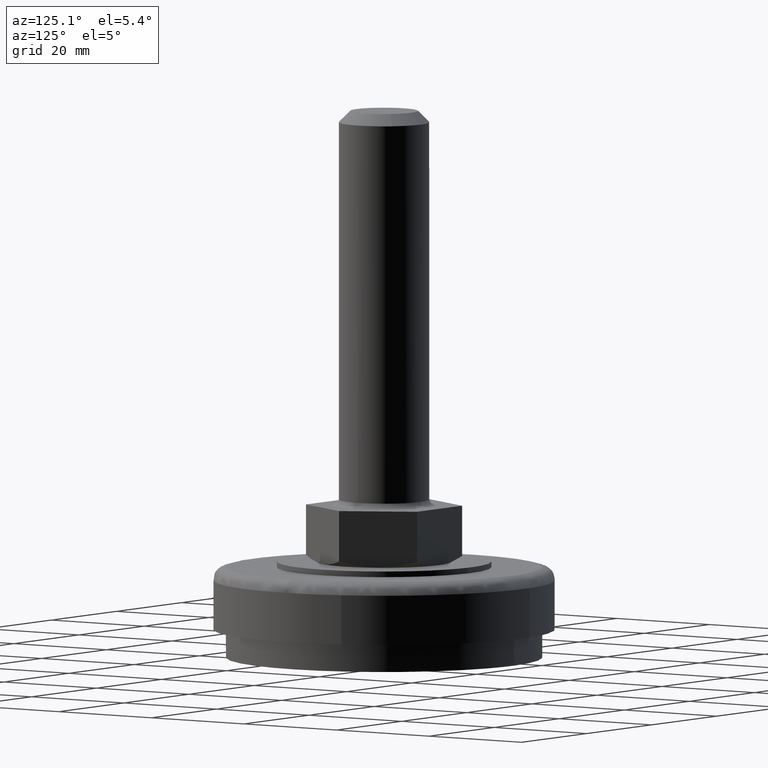
[diagram: clean part render]
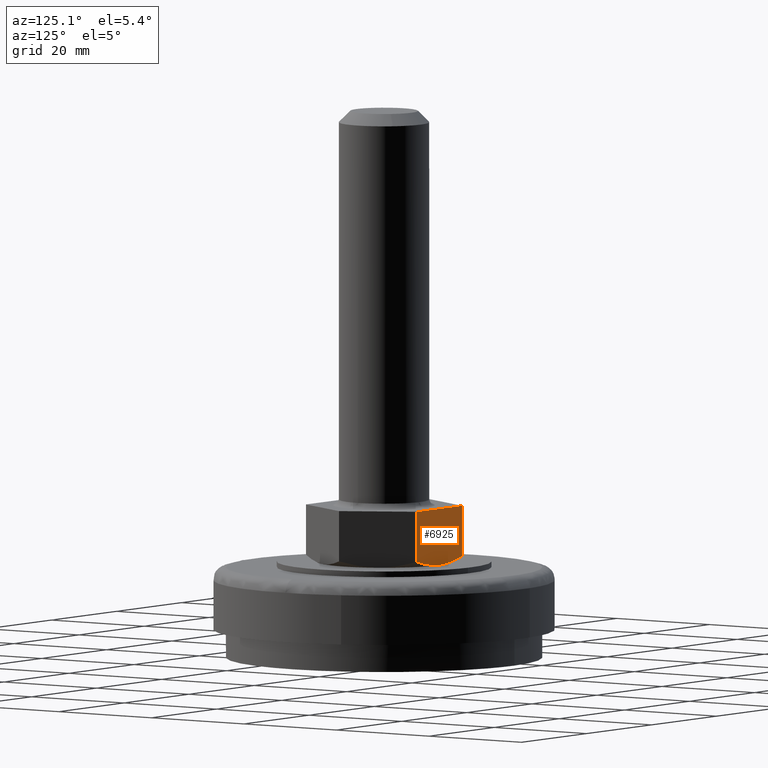
[diagram: same view with one face highlighted and labeled with its STEP entity id]
A machine part, auxiliary view. The second image highlights one B-rep face of the part: STEP entity #6925.
In plain terms, the highlighted face is a freeform B-spline surface patch.
Its self-contained STEP definition (entity closure, byte-faithful):
#5114=CARTESIAN_POINT('',(6.921797000000001,12.0,18.073646796981301));
#5115=VERTEX_POINT('',#5114);
#5190=CARTESIAN_POINT('',(-6.921797000000001,12.0,18.073646796981301));
#5191=VERTEX_POINT('',#5190);
#5211=CARTESIAN_POINT('',(6.921797000000007,12.0,18.073646796981269));
#5212=CARTESIAN_POINT('',(5.802870978181909,12.0,17.750864757764660));
#5213=CARTESIAN_POINT('',(4.669317161793999,12.0,17.482083020122989));
#5214=CARTESIAN_POINT('',(3.224847049230169,12.0,17.247728260586779));
#5215=CARTESIAN_POINT('',(2.789433234024566,12.0,17.185073760166759));
#5216=CARTESIAN_POINT('',(2.350644054811800,12.0,17.134879830849361));
#5217=CARTESIAN_POINT('',(2.057339841839577,12.0,17.104289639085231));
#5218=CARTESIAN_POINT('',(1.910142876343359,12.0,17.090418470358319));
#5219=CARTESIAN_POINT('',(1.174110774181517,12.0,17.028651724187981));
#5220=CARTESIAN_POINT('',(0.587159239858375,12.0,17.003758089595440));
#5221=CARTESIAN_POINT('',(-0.582947442430040,12.0,17.003639534272232));
#5222=CARTESIAN_POINT('',(-1.166103339210489,12.0,17.028404816675980));
#5223=CARTESIAN_POINT('',(-2.328807218985741,12.0,17.125138279335602));
#5224=CARTESIAN_POINT('',(-2.908357873238034,12.0,17.197071511113780));
#5225=CARTESIAN_POINT('',(-4.064224947717317,12.0,17.383251962031270));
#5226=CARTESIAN_POINT('',(-4.640615515414134,12.0,17.497475225435551));
#5227=CARTESIAN_POINT('',(-5.790343191297198,12.0,17.762066278652380));
#5228=CARTESIAN_POINT('',(-6.358660324426958,12.0,17.911196017434790));
#5229=CARTESIAN_POINT('',(-6.921797000000001,12.0,18.073646796981301));
#5230=B_SPLINE_CURVE_WITH_KNOTS('',3,(#5211,#5212,#5213,#5214,#5215,#5216,#5217,#5218,#5219,#5220,#5221,#5222,#5223,#5224,#5225,#5226,#5227,#5228,#5229),.UNSPECIFIED.,.F.,.U.,(4,2,1,2,2,2,2,2,2,4),(0.0,0.250000000000000,0.312500000000000,0.343750000000000,0.375000000000000,0.500000000000000,0.625000000000000,0.750000000000000,0.875000000000000,1.0),.UNSPECIFIED.);
#5231=EDGE_CURVE('',#5115,#5191,#5230,.T.);
#6765=CARTESIAN_POINT('',(-6.921797000000001,12.0,27.0));
#6766=VERTEX_POINT('',#6765);
#6767=CARTESIAN_POINT('',(6.921797000000001,12.0,27.0));
#6768=VERTEX_POINT('',#6767);
#6769=CARTESIAN_POINT('',(-6.921797000000001,12.0,27.0));
#6770=CARTESIAN_POINT('',(6.921797000000001,12.0,27.0));
#6771=QUASI_UNIFORM_CURVE('',1,(#6769,#6770),.UNSPECIFIED.,.F.,.U.);
#6772=EDGE_CURVE('',#6766,#6768,#6771,.T.);
#6833=CARTESIAN_POINT('',(-6.921797000000001,12.0,27.0));
#6834=CARTESIAN_POINT('',(-6.921797000000001,12.0,18.073646796981301));
#6835=QUASI_UNIFORM_CURVE('',1,(#6833,#6834),.UNSPECIFIED.,.F.,.U.);
#6836=EDGE_CURVE('',#6766,#5191,#6835,.T.);
#6905=CARTESIAN_POINT('',(6.921797000000001,12.0,27.0));
#6906=CARTESIAN_POINT('',(6.921797000000001,12.0,18.073646796981301));
#6907=QUASI_UNIFORM_CURVE('',1,(#6905,#6906),.UNSPECIFIED.,.F.,.U.);
#6908=EDGE_CURVE('',#6768,#5115,#6907,.T.);
#6914=CARTESIAN_POINT('',(-7.613284314055633,12.0,16.504383100148491));
#6915=CARTESIAN_POINT('',(-7.613284314055633,12.0,27.499315516250480));
#6916=CARTESIAN_POINT('',(7.613283818970132,12.0,16.504383100148491));
#6917=CARTESIAN_POINT('',(7.613283818970132,12.0,27.499315516250469));
#6918=B_SPLINE_SURFACE_WITH_KNOTS('',1,1,((#6914,#6916),(#6915,#6917)),.UNSPECIFIED.,.F.,.F.,.U.,(2,2),(2,2),(0.0,10.994932416101991),(0.0,15.226568133025770),.UNSPECIFIED.);
#6919=ORIENTED_EDGE('',*,*,#6908,.T.);
#6920=ORIENTED_EDGE('',*,*,#5231,.T.);
#6921=ORIENTED_EDGE('',*,*,#6836,.F.);
#6922=ORIENTED_EDGE('',*,*,#6772,.T.);
#6923=EDGE_LOOP('',(#6919,#6920,#6921,#6922));
#6924=FACE_OUTER_BOUND('',#6923,.T.);
#6925=ADVANCED_FACE('',(#6924),#6918,.T.);